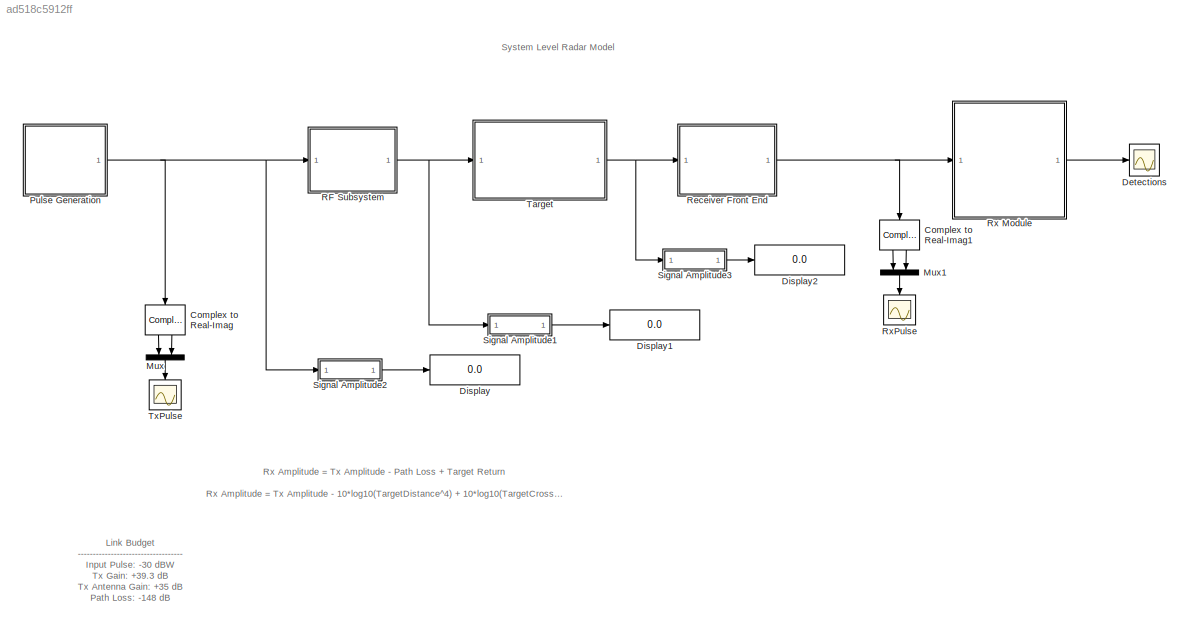
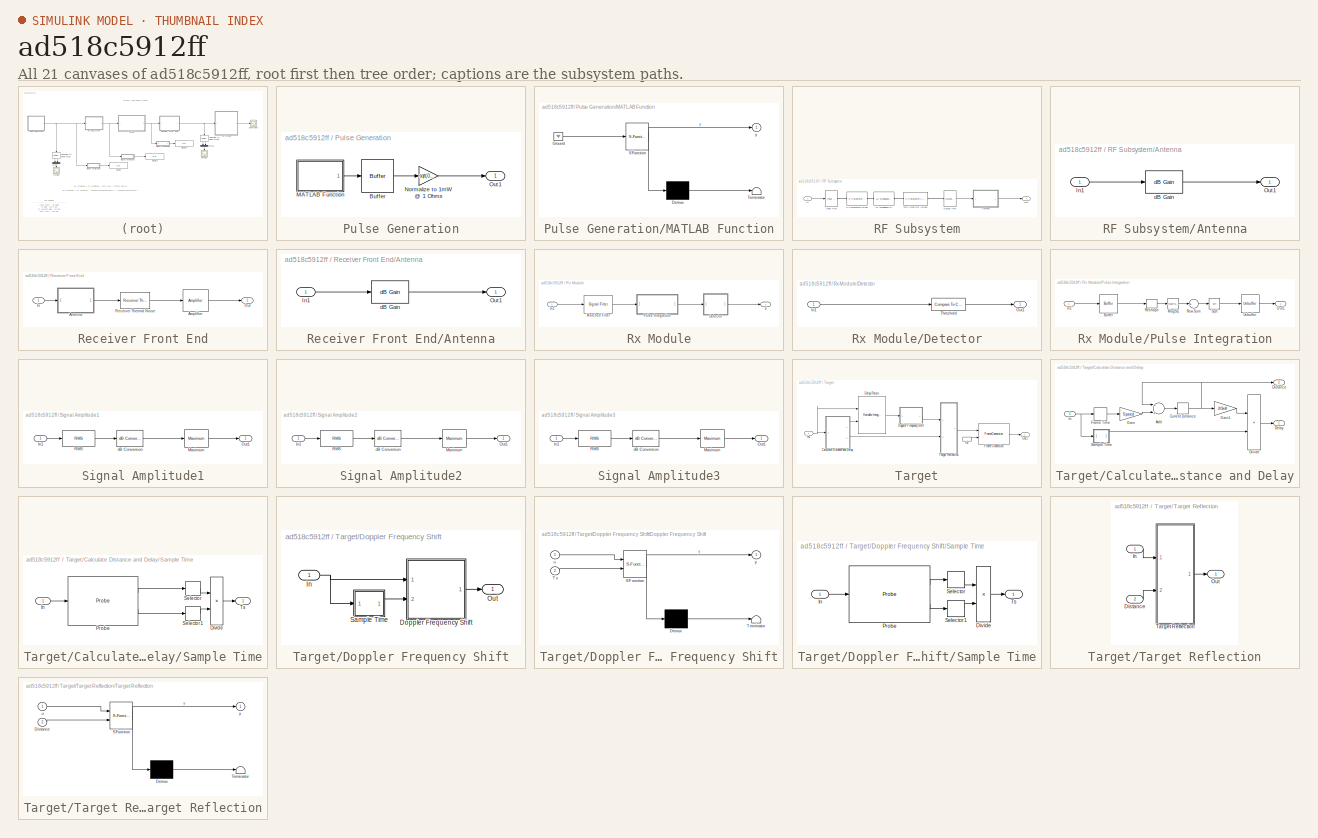
[diagram: thumbnail index - all 21 canvases of the model, root first then tree order]
MODEL slx_ad518c5912ff
KIND model
WORKSPACE source: MAT-file member
WORKSPACE Ts = 1.6667e-07
BLOCK [ComplexToRealImag] Complex to Real-Imag
  Ports = [1, 2]
BLOCK [ComplexToRealImag] Complex to Real-Imag1
  Ports = [1, 2]
BLOCK [Scope] Detections
  DataFormat = StructureWithTime
  Floating = off
  LimitDataPoints = off
  NumInputPorts = 1
  Ports = [1]
  SampleTime = 0
  SaveName = ScopeData1
  ShowLegends = off
  TimeRange = 0.0004
  YMax = 1
  YMin = 0
  ZoomMode = xonly
BLOCK [Display] Display
  Decimation = 1
  Lockdown = off
  Ports = [1]
BLOCK [Display] Display1
  Decimation = 1
  Lockdown = off
  Ports = [1]
BLOCK [Display] Display2
  Decimation = 1
  Lockdown = off
  Ports = [1]
BLOCK [Mux] Mux
  DisplayOption = bar
  Inputs = 2
  Ports = [2, 1]
BLOCK [Mux] Mux1
  DisplayOption = bar
  Inputs = 2
  Ports = [2, 1]
BLOCK [SubSystem] Pulse Generation
  FunctionWithSeparateData = off
  MaskHideContents = off
  MinAlgLoopOccurrences = off
  Opaque = off
  Ports = [0, 1]
  PropExecContextOutsideSubsystem = off
  RTWSystemCode = Auto
  RequestExecContextInheritance = off
BLOCK [Buffer] Pulse Generation/Buffer
  N = 1
  TreatMby1Signals = One channel
BLOCK [SubSystem] Pulse Generation/MATLAB Function
  ErrorFcn = Stateflow.Translate.translate
  FunctionWithSeparateData = off
  MaskHideContents = off
  MinAlgLoopOccurrences = off
  Opaque = off
  PermitHierarchicalResolution = ExplicitOnly
  Ports = [0, 1]
  PropExecContextOutsideSubsystem = off
  RTWSystemCode = Auto
  RequestExecContextInheritance = off
  SFBlockType = MATLAB Function
  TreatAsAtomicUnit = on
BLOCK [Demux] Pulse Generation/MATLAB Function/ Demux 
  Outputs = 1
  Ports = [1, 1]
BLOCK [Ground] Pulse Generation/MATLAB Function/ Ground 
BLOCK [S-Function] Pulse Generation/MATLAB Function/ SFunction 
  EnableBusSupport = off
  FunctionName = sf_sfun
  PortCounts = [1 2]
  Ports = [1, 2]
  Tag = Stateflow S-Function RadarSystemLevel_2 2
BLOCK [Terminator] Pulse Generation/MATLAB Function/ Terminator 
BLOCK [Outport] Pulse Generation/MATLAB Function/y
  IconDisplay = Port number
BLOCK [Gain] Pulse Generation/Normalize to 1mW @ 1 Ohms 
  Gain = sqrt(.001)
  OutDataTypeStr = Inherit: Inherit via internal rule
  ParamDataTypeStr = Inherit: Inherit via internal rule
  SaturateOnIntegerOverflow = off
BLOCK [Outport] Pulse Generation/Out1
  IconDisplay = Port number
BLOCK [SubSystem] RF Subsystem
  FunctionWithSeparateData = off
  MaskHideContents = off
  MinAlgLoopOccurrences = off
  Opaque = off
  Ports = [1, 1]
  PropExecContextOutsideSubsystem = off
  RTWSystemCode = Auto
  RequestExecContextInheritance = off
BLOCK [SubSystem] RF Subsystem/Antenna
  FunctionWithSeparateData = off
  MaskHideContents = off
  MinAlgLoopOccurrences = off
  Opaque = off
  Ports = [1, 1]
  PropExecContextOutsideSubsystem = off
  RTWSystemCode = Auto
  RequestExecContextInheritance = off
BLOCK [Inport] RF Subsystem/Antenna/In1
  IconDisplay = Port number
BLOCK [Outport] RF Subsystem/Antenna/Out1
  IconDisplay = Port number
BLOCK [Reference] RF Subsystem/Antenna/dB Gain  REF=dspmathops/dB Gain
  Ports = [1, 1]
  SourceBlock = dspmathops/dB Gain
  SourceType = dB Gain
  dB = 35
  intype = Amplitude
BLOCK [Inport] RF Subsystem/In
  IconDisplay = Port number
BLOCK [Reference] RF Subsystem/Input Port  REF=rfports1/Input Port
  Description = source block
  Fc = carrierFreq
  FracBW = 0
  GoToTag = BBDGFEHJWJPKQFZCCFMWFQE
  MaxLength = 128
  ModelDelay = 0
  NoiseFlag = off
  Ports = [1, 0, 0, 0, 0, 0, 1]
  RFhasDSP = Columns as channels (frame based)
  SourceBlock = rfports1/Input Port
  SourceType = Input Port
  TreatSimulinkInputSignalAs = Incident power wave
  Ts = Ts
  Zs = 50
  seed = 67987
BLOCK [Reference] RF Subsystem/LC Bandpass Pi  REF=rfladderfilters1/LC Bandpass Pi
  AllPlotType = X-Y plane
  AppliedComplexFormat = Magnitude (decibels)
  AppliedNetworkData = S21
  AppliedXFormat = Hz
  AppliedXParameter = Freq
  C = [3.5785e-11  1.1762e-12  3.5785e-11]*.32
  ComplexFormat = Magnitude (decibels)
  DBFormat = Magnitude (decibels)
  DisplayData = off
  Freq = [1000e6:4e6:3000e6]
  L = [1.4446e-9  4.3949e-8  1.4446e-9]*.32
  LConnTagsString = __newl0
  NetworkData = S21
  NoneFormat = None
  PlotFreq = User-specified
  PlotFreqNoSim = User-specified
  PlotZ0 = 50
  PolarData = S11
  Ports = [0, 0, 0, 0, 0, 1, 1]
  RConnTagsString = __newr0
  SmithData = S11
  SourceBlock = rfladderfilters1/LC Bandpass Pi
  SourceFreq = User-specified
  SourceType = LC Bandpass Pi
  XOption = Linear
  YOption = Linear
BLOCK [Outport] RF Subsystem/Out
  IconDisplay = Port number
BLOCK [Reference] RF Subsystem/Output Port  REF=rfports1/Output Port
  AllPlotType = X-Y plane
  AppliedComplexFormat = Magnitude (decibels)
  AppliedComplexFormat2 = Magnitude (decibels)
  AppliedNetworkData = S21
  AppliedNetworkData2 = NF
  AppliedXFormat = Hz
  AppliedXParameter = Freq
  ComplexFormat = Magnitude (decibels)
  DBFormat = Magnitude (decibels)
  DBMFormat = dBm
  DisplayData = off
  Flag = 0
  Freq = 1e9:1e8:3e9
  GoToTag = BBDGFEHJWJPKQFZCCFMWFQE
  NetworkData = S11
  NoBudgetPlot = Composite data
  NoneFormat = None
  PlotFreq = User-specified
  PlotZ0 = 50
  PolarData = S11
  Ports = [0, 1, 0, 0, 0, 1]
  SmithData = S11
  SourceBlock = rfports1/Output Port
  SourceFreq = Derived from Input Port parameters
  SourceType = Output Port
  XOption = Linear
  YOption = Linear
  Zl = 50
  num_Models = 0
BLOCK [Reference] RF Subsystem/S-Parameters Mixer  REF=rfmixers1/S-Parameters
Mixer
  AllPlotType = X-Y plane
  AppliedComplexFormat = Magnitude (decibels)
  AppliedNetworkData = S11
  AppliedXFormat = Auto
  AppliedXParameter = Freq
  ComplexFormat = 0
  DBFormat = 0
  DBcFormat = 0
  DisplayData = 0
  FLO = 0
  FMIN = 0
  Freq = [1e9:1e8:2.9e9]
  FreqOffset = [0.1 1 10 100]*1e3
  GCSat = 0
  GammaOpt = 1
  IIP3 = inf
  IP3Type = OIP3
  InterpMethod = Linear
  LConnTagsString = __newl0
  MixerType = Upconverter
  NF = 0
  NFactor = 1
  NTemp = 0
  NetParamData = [0 0;1 0]
  NetParamFreq = carrierFreq
  NetworkData = 0
  NoiseDataFreq = 2.0e9
  NoiseDefinedBy = Noise figure
  NoneFormat = 0
  NonlinearDataFreq = 2.0e9
  OIP3 = inf
  P1dB = inf
  PSat = inf
  PhaseNoiseLevel = [-70 -120 -140 -150]
  Pin = 0
  PlotFreq = Same as the Frequency parameter
  PlotFreqNoSim = 0
  PlotZ0 = 50
  PolarData = 0
  Ports = [0, 0, 0, 0, 0, 1, 1]
  RConnTagsString = __newr0
  RN = 1
  SmithData = 0
  SourceBlock = rfmixers1/S-Parameters\nMixer
  SourceFreq = Same as the s-parameters frequency
  SourcePin = Extracted from data source
  SourceType = S-Parameters Mixer
  XOption = Linear
  YOption = Linear
  Z0 = 50
BLOCK [Reference] RF Subsystem/TWT Amplifier (40 dB)  REF=rfamplifiers1/S-Parameters
Amplifier
  AllPlotType = X-Y plane
  AppliedComplexFormat = Magnitude (decibels)
  AppliedNetworkData = S11
  AppliedXFormat = Auto
  AppliedXParameter = Freq
  ComplexFormat = 0
  DBFormat = 0
  DisplayData = 0
  FMIN = 0
  Freq = [1.9e9:1.0e8:2.2e9]
  GCSat = 0
  GammaOpt = 1
  IIP3 = 50
  IP3Type = OIP3
  InterpMethod = Linear
  LConnTagsString = __newl0
  NF = 8
  NFactor = 1
  NTemp = 0
  NetParamData = [0,0;sqrt(10000),0]
  NetParamFreq = carrierFreq
  NetworkData = 0
  NoiseDataFreq = 2.0e9
  NoiseDefinedBy = Noise figure
  NoneFormat = 0
  NonlinearDataFreq = 2.0e9
  OIP3 = 50
  P1dB = inf
  PSat = inf
  Pin = 0
  PlotFreq = Derived from Input Port parameters
  PlotFreqNoSim = 0
  PlotZ0 = 50
  PolarData = 0
  Ports = [0, 0, 0, 0, 0, 1, 1]
  RConnTagsString = __newr0
  RN = 1
  SmithData = 0
  SourceBlock = rfamplifiers1/S-Parameters\nAmplifier
  SourceFreq = Same as the s-parameters frequency
  SourcePin = Extracted from data source
  SourceType = S-Parameters Amplifier
  XOption = Linear
  YOption = Linear
  Z0 = 50
BLOCK [SubSystem] Receiver Front End
  FunctionWithSeparateData = off
  MaskHideContents = off
  MinAlgLoopOccurrences = off
  Opaque = off
  Ports = [1, 1]
  PropExecContextOutsideSubsystem = off
  RTWSystemCode = Auto
  RequestExecContextInheritance = off
BLOCK [Reference] Receiver Front End/Amplifier  REF=rfmathmodels1/Amplifier
  GindB = 0
  GoutdB = 0
  Ports = [1, 1]
  PwrAMPMEnd = inf
  PwrAMPMStart = 10
  SourceBlock = rfmathmodels1/Amplifier
  SourceType = Amplifier
  am2pm = 10
  amam = [2.1587 1.1517]
  ampm = [4.0033 9.1040]
  iip3 = 30
  linGaindB = 30
  method_select = Noise figure
  model_select = Linear
  nfactor = 6.3
  nfigure = 6.3
  ntemp = 290
  p = 0.5
  seed = 67987
  vsat = 1
  x = [8.1081 1.5413 6.5202 -0.0718]
  y = [4.6645 2.0965 10.88 -0.003]
BLOCK [SubSystem] Receiver Front End/Antenna
  FunctionWithSeparateData = off
  MaskHideContents = off
  MinAlgLoopOccurrences = off
  Opaque = off
  Ports = [1, 1]
  PropExecContextOutsideSubsystem = off
  RTWSystemCode = Auto
  RequestExecContextInheritance = off
BLOCK [Inport] Receiver Front End/Antenna/In1
  IconDisplay = Port number
BLOCK [Outport] Receiver Front End/Antenna/Out1
  IconDisplay = Port number
BLOCK [Reference] Receiver Front End/Antenna/dB Gain  REF=dspmathops/dB Gain
  Ports = [1, 1]
  SourceBlock = dspmathops/dB Gain
  SourceType = dB Gain
  dB = 35
  intype = Amplitude
BLOCK [Inport] Receiver Front End/In
  IconDisplay = Port number
BLOCK [Outport] Receiver Front End/Out
  IconDisplay = Port number
BLOCK [Reference] Receiver Front End/Receiver Thermal Noise  REF=commrflib2/Receiver
Thermal Noise
  Ports = [1, 1]
  SourceBlock = commrflib2/Receiver\nThermal Noise
  SourceType = Receiver Thermal Noise
  method = Noise temperature
  nfactor = 2
  nfigure = 3.01
  ntemp = 290
  seed = 67987
BLOCK [SubSystem] Rx Module
  FunctionWithSeparateData = off
  MaskHideContents = off
  MinAlgLoopOccurrences = off
  Opaque = off
  Ports = [1, 1]
  PropExecContextOutsideSubsystem = off
  RTWSystemCode = Auto
  RequestExecContextInheritance = off
BLOCK [SubSystem] Rx Module/Detector
  FunctionWithSeparateData = off
  MaskHideContents = off
  MinAlgLoopOccurrences = off
  Opaque = off
  Ports = [1, 1]
  PropExecContextOutsideSubsystem = off
  RTWSystemCode = Auto
  RequestExecContextInheritance = off
BLOCK [Inport] Rx Module/Detector/In1
  IconDisplay = Port number
BLOCK [Outport] Rx Module/Detector/Out1
  IconDisplay = Port number
BLOCK [Reference] Rx Module/Detector/Threshold  REF=simulink/Logic and Bit
Operations/Compare
To Constant
  OutDataTypeStr = boolean
  Ports = [1, 1]
  SourceBlock = simulink/Logic and Bit\nOperations/Compare\nTo Constant
  SourceType = Compare To Constant
  ZeroCross = on
  const = 4e-4
  relop = >
BLOCK [Inport] Rx Module/In1
  IconDisplay = Port number
BLOCK [Reference] Rx Module/Matched Filter  REF=dsparch4/Digital Filter
  AllPoleFiltStruct = Direct form
  BiQuadCoeffs = [1 0.3 0.4 1 0.1 0.2]
  CoeffSource = Specify via dialog
  DenCoeffs = [1 0.1]
  FIRFiltStruct = Direct form
  FiltPerSampPopup = One filter per frame
  FilterSource = Specify via dialog
  IC = 0
  ICden = 0
  ICnum = 0
  IIRFiltStruct = Direct form II transposed
  InputProcessing = Columns as channels (frame based)
  LatticeCoeffs = [0.2 0.4]
  LockScale = off
  NumCoeffs = mf_lfm
  Ports = [1, 1]
  ScaleValues = 1
  SourceBlock = dsparch4/Digital Filter
  SourceType = Digital Filter
  TypePopup = FIR (all zeros)
  UserDataPersistent = on
  accumFracLength = 30
  accumMode = Same as product output
  accumWordLength = 32
  additionalParams = off
  allowOverrides = on
  denIgnore = on
  dfiltObjectName = dfilt.dffir([1 2 1])
  firstCoeffFracLength = 15
  firstCoeffMode = Same word length as input
  firstCoeffWordLength = 16
  memoryFracLength = 15
  memoryMode = Same as accumulator
  memoryWordLength = 16
  multiplicandFracLength = 30
  multiplicandMode = Same as output
  multiplicandWordLength = 32
  outputFracLength = 15
  outputMode = Same as accumulator
  outputWordLength = 16
  overflowMode = off
  prodOutputFracLength = 30
  prodOutputMode = Same as input
  prodOutputWordLength = 32
  roundingMode = Floor
  scaleValueFracLength = 14
  secondCoeffFracLength = 15
  secondCoeffMode = Same as numerator
  secondCoeffWordLength = 16
  showAcc = off
  showCoeff = off
  showMem = off
  showMpy = off
  showOut = off
  stageIOMode = Same as input
  stageIOWordLength = 16
  stageInFracLength = 15
  stageOutFracLength = 15
  tapSumFracLength = 30
  tapSumMode = Same as input
  tapSumWordLength = 32
  thirdCoeffFracLength = 15
  thirdCoeffMode = Same as input
  thirdCoeffWordLength = 16
BLOCK [SubSystem] Rx Module/Pulse Integration
  FunctionWithSeparateData = off
  MaskHideContents = off
  MinAlgLoopOccurrences = off
  Opaque = off
  Ports = [1, 1]
  PropExecContextOutsideSubsystem = off
  RTWSystemCode = Auto
  RequestExecContextInheritance = off
BLOCK [Buffer] Rx Module/Pulse Integration/Buffer
  N = pulseLen*N
  TreatMby1Signals = One channel
  V = pulseLen*(N-1)
BLOCK [Inport] Rx Module/Pulse Integration/In1
  IconDisplay = Port number
BLOCK [Math] Rx Module/Pulse Integration/MagSq
  Operator = magnitude^2
  Ports = [1, 1]
BLOCK [Outport] Rx Module/Pulse Integration/Out1
  IconDisplay = Port number
BLOCK [Reshape] Rx Module/Pulse Integration/Reshape
  OutputDimensionality = Customize
  OutputDimensions = [pulseLen,N]
  Ports = [1, 1]
BLOCK [Sum] Rx Module/Pulse Integration/Row Sum
  CollapseDim = 2
  CollapseMode = Specified dimension
  InputSameDT = off
  Inputs = +
  OutDataTypeStr = Inherit: Inherit via internal rule
  Ports = [1, 1]
  SaturateOnIntegerOverflow = off
BLOCK [Sqrt] Rx Module/Pulse Integration/Sqrt
BLOCK [Unbuffer] Rx Module/Pulse Integration/Unbuffer
  Ports = [1, 1]
  SampleBasedProcessing = Same as frame based
BLOCK [Outport] Rx Module/d
  IconDisplay = Port number
BLOCK [Scope] RxPulse
  DataFormat = StructureWithTime
  Floating = off
  LimitDataPoints = off
  NumInputPorts = 1
  Ports = [1]
  SampleTime = 0
  SaveName = ScopeData2
  ShowLegends = off
  TimeRange = 0.0004
  YMax = 5e-05
  YMin = -4e-05
  ZoomMode = xonly
BLOCK [SubSystem] Signal Amplitude1
  FunctionWithSeparateData = off
  MaskHideContents = off
  MinAlgLoopOccurrences = off
  Opaque = off
  Ports = [1, 1]
  PropExecContextOutsideSubsystem = off
  RTWSystemCode = Auto
  RequestExecContextInheritance = off
BLOCK [Inport] Signal Amplitude1/In1
  IconDisplay = Port number
BLOCK [Reference] Signal Amplitude1/Maximum  REF=dspstat3/Maximum
  Dimension = 1
  InputProcessing = Elements as channels (sample based)
  LockScale = off
  Ports = [1, 1]
  SourceBlock = dspstat3/Maximum
  SourceType = Maximum
  UserDataPersistent = on
  accumDataTypeStr = Inherit: Same as product output
  accumFracLength = 30
  accumLastDataTypeStr = Inherit: Same as product output
  accumMode = Same as product output
  accumWordLength = 32
  additionalParams = off
  allowOverrides = on
  colComp = on
  fcn = Running
  indexBase = One
  operateOver = Each column
  operation = maximum
  overflowMode = off
  prodOutputDataTypeStr = Inherit: Same as input
  prodOutputFracLength = 30
  prodOutputLastDataTypeStr = Inherit: Same as input
  prodOutputMode = Same as input
  prodOutputWordLength = 32
  reset = None
  roiEnable = off
  roiFlag = off
  roiOutput = Individual statistics for each ROI
  roiPortion = Entire ROI
  roiType = Rectangles
  roundingMode = Floor
BLOCK [Outport] Signal Amplitude1/Out1
  IconDisplay = Port number
BLOCK [Reference] Signal Amplitude1/RMS  REF=dspstat3/RMS
  InputProcessing = Columns as channels (frame based)
  Ports = [1, 1]
  SourceBlock = dspstat3/RMS
  SourceType = RMS
  UserDataPersistent = on
  dimension = 1
  directionMode = Each column
  reset_popup = None
  run = off
  treatSBRowAsCol = on
BLOCK [Reference] Signal Amplitude1/dB Conversion  REF=dspmathops/dB Conversion
  Ports = [1, 1]
  R = 1
  SourceBlock = dspmathops/dB Conversion
  SourceType = dB Conversion
  dBtype = dB
  fuzz = off
  intype = Amplitude
BLOCK [SubSystem] Signal Amplitude2
  FunctionWithSeparateData = off
  MaskHideContents = off
  MinAlgLoopOccurrences = off
  Opaque = off
  Ports = [1, 1]
  PropExecContextOutsideSubsystem = off
  RTWSystemCode = Auto
  RequestExecContextInheritance = off
BLOCK [Inport] Signal Amplitude2/In1
  IconDisplay = Port number
BLOCK [Reference] Signal Amplitude2/Maximum  REF=dspstat3/Maximum
  Dimension = 1
  InputProcessing = Elements as channels (sample based)
  LockScale = off
  Ports = [1, 1]
  SourceBlock = dspstat3/Maximum
  SourceType = Maximum
  UserDataPersistent = on
  accumDataTypeStr = Inherit: Same as product output
  accumFracLength = 30
  accumLastDataTypeStr = Inherit: Same as product output
  accumMode = Same as product output
  accumWordLength = 32
  additionalParams = off
  allowOverrides = on
  colComp = on
  fcn = Running
  indexBase = One
  operateOver = Each column
  operation = maximum
  overflowMode = off
  prodOutputDataTypeStr = Inherit: Same as input
  prodOutputFracLength = 30
  prodOutputLastDataTypeStr = Inherit: Same as input
  prodOutputMode = Same as input
  prodOutputWordLength = 32
  reset = None
  roiEnable = off
  roiFlag = off
  roiOutput = Individual statistics for each ROI
  roiPortion = Entire ROI
  roiType = Rectangles
  roundingMode = Floor
BLOCK [Outport] Signal Amplitude2/Out1
  IconDisplay = Port number
BLOCK [Reference] Signal Amplitude2/RMS  REF=dspstat3/RMS
  InputProcessing = Columns as channels (frame based)
  Ports = [1, 1]
  SourceBlock = dspstat3/RMS
  SourceType = RMS
  UserDataPersistent = on
  dimension = 1
  directionMode = Each column
  reset_popup = None
  run = off
  treatSBRowAsCol = on
BLOCK [Reference] Signal Amplitude2/dB Conversion  REF=dspmathops/dB Conversion
  Ports = [1, 1]
  R = 1
  SourceBlock = dspmathops/dB Conversion
  SourceType = dB Conversion
  dBtype = dB
  fuzz = off
  intype = Amplitude
BLOCK [SubSystem] Signal Amplitude3
  FunctionWithSeparateData = off
  MaskHideContents = off
  MinAlgLoopOccurrences = off
  Opaque = off
  Ports = [1, 1]
  PropExecContextOutsideSubsystem = off
  RTWSystemCode = Auto
  RequestExecContextInheritance = off
BLOCK [Inport] Signal Amplitude3/In1
  IconDisplay = Port number
BLOCK [Reference] Signal Amplitude3/Maximum  REF=dspstat3/Maximum
  Dimension = 1
  InputProcessing = Elements as channels (sample based)
  LockScale = off
  Ports = [1, 1]
  SourceBlock = dspstat3/Maximum
  SourceType = Maximum
  UserDataPersistent = on
  accumDataTypeStr = Inherit: Same as product output
  accumFracLength = 30
  accumLastDataTypeStr = Inherit: Same as product output
  accumMode = Same as product output
  accumWordLength = 32
  additionalParams = off
  allowOverrides = on
  colComp = on
  fcn = Running
  indexBase = One
  operateOver = Each column
  operation = maximum
  overflowMode = off
  prodOutputDataTypeStr = Inherit: Same as input
  prodOutputFracLength = 30
  prodOutputLastDataTypeStr = Inherit: Same as input
  prodOutputMode = Same as input
  prodOutputWordLength = 32
  reset = None
  roiEnable = off
  roiFlag = off
  roiOutput = Individual statistics for each ROI
  roiPortion = Entire ROI
  roiType = Rectangles
  roundingMode = Floor
BLOCK [Outport] Signal Amplitude3/Out1
  IconDisplay = Port number
BLOCK [Reference] Signal Amplitude3/RMS  REF=dspstat3/RMS
  InputProcessing = Columns as channels (frame based)
  Ports = [1, 1]
  SourceBlock = dspstat3/RMS
  SourceType = RMS
  UserDataPersistent = on
  dimension = 1
  directionMode = Each column
  reset_popup = None
  run = off
  treatSBRowAsCol = on
BLOCK [Reference] Signal Amplitude3/dB Conversion  REF=dspmathops/dB Conversion
  Ports = [1, 1]
  R = 1
  SourceBlock = dspmathops/dB Conversion
  SourceType = dB Conversion
  dBtype = dB
  fuzz = off
  intype = Amplitude
BLOCK [SubSystem] Target
  FunctionWithSeparateData = off
  MaskHideContents = off
  MinAlgLoopOccurrences = off
  Opaque = off
  Ports = [1, 1]
  PropExecContextOutsideSubsystem = off
  RTWSystemCode = Auto
  RequestExecContextInheritance = off
BLOCK [SubSystem] Target/Calculate Distance and Delay
  FunctionWithSeparateData = off
  MaskHideContents = off
  MinAlgLoopOccurrences = off
  Opaque = off
  Ports = [1, 2]
  PropExecContextOutsideSubsystem = off
  RTWSystemCode = Auto
  RequestExecContextInheritance = off
BLOCK [Sum] Target/Calculate Distance and Delay/Add
  InputSameDT = off
  OutDataTypeStr = Inherit: Inherit via internal rule
  Ports = [2, 1]
  SaturateOnIntegerOverflow = off
BLOCK [Memory] Target/Calculate Distance and Delay/Current Distance
  InheritSampleTime = on
  X0 = DistanceStart
BLOCK [Outport] Target/Calculate Distance and Delay/Delay
  IconDisplay = Port number
BLOCK [Outport] Target/Calculate Distance and Delay/Distance
  IconDisplay = Port number
  Port = 2
BLOCK [Product] Target/Calculate Distance and Delay/Divide
  InputSameDT = off
  Inputs = */
  OutDataTypeStr = Inherit: Inherit via internal rule
  Ports = [2, 1]
  RndMeth = Floor
  SaturateOnIntegerOverflow = off
BLOCK [SampleTimeMath] Target/Calculate Distance and Delay/Frame Time
  TsampMathOp = Ts Only
BLOCK [Gain] Target/Calculate Distance and Delay/Gain
  Gain = Speed
BLOCK [Gain] Target/Calculate Distance and Delay/Gain1
  Gain = 2/3e8
  OutDataTypeStr = Inherit: Inherit via internal rule
  ParamDataTypeStr = Inherit: Inherit via internal rule
  SaturateOnIntegerOverflow = off
BLOCK [Inport] Target/Calculate Distance and Delay/In
  IconDisplay = Port number
BLOCK [SubSystem] Target/Calculate Distance and Delay/Sample Time
  FunctionWithSeparateData = off
  MaskHideContents = off
  MinAlgLoopOccurrences = off
  Opaque = off
  Ports = [1, 1]
  PropExecContextOutsideSubsystem = off
  RTWSystemCode = Auto
  RequestExecContextInheritance = off
BLOCK [Product] Target/Calculate Distance and Delay/Sample Time/Divide
  InputSameDT = off
  Inputs = */
  OutDataTypeStr = Inherit: Inherit via internal rule
  Ports = [2, 1]
  RndMeth = Floor
  SaturateOnIntegerOverflow = off
BLOCK [Inport] Target/Calculate Distance and Delay/Sample Time/In
  IconDisplay = Port number
BLOCK [Probe] Target/Calculate Distance and Delay/Sample Time/Probe
  Ports = [1, 2]
  ProbeComplexSignal = off
  ProbeSignalDimensions = on
  ProbeWidth = off
BLOCK [Selector] Target/Calculate Distance and Delay/Sample Time/Selector
  IndexOptions = Index vector (dialog)
  Indices = 1
  InputPortWidth = 2
  OutputSizes = 1
  Ports = [1, 1]
BLOCK [Selector] Target/Calculate Distance and Delay/Sample Time/Selector1
  IndexOptions = Index vector (dialog)
  Indices = 1
  InputPortWidth = 2
  OutputSizes = 1
  Ports = [1, 1]
BLOCK [Outport] Target/Calculate Distance and Delay/Sample Time/Ts
  IconDisplay = Port number
BLOCK [Reference] Target/Delay Return  REF=dspsigops/Variable
Integer Delay
  InputProcessing = Columns as channels (frame based)
  Ports = [2, 1]
  SourceBlock = dspsigops/Variable\nInteger Delay
  SourceType = Variable Integer Delay
  UserDataPersistent = on
  dmax = 10000
  ic = 0
  noDFT = off
BLOCK [SubSystem] Target/Doppler Frequency Shift
  FunctionWithSeparateData = off
  MaskHideContents = off
  MinAlgLoopOccurrences = off
  Opaque = off
  Ports = [1, 1]
  PropExecContextOutsideSubsystem = off
  RTWSystemCode = Auto
  RequestExecContextInheritance = off
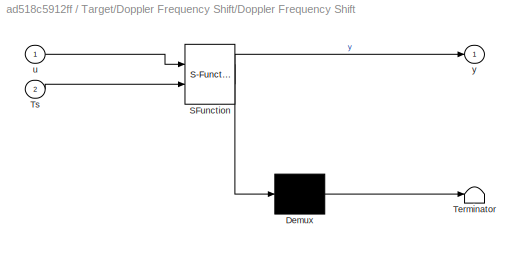
BLOCK [SubSystem] Target/Doppler Frequency Shift/Doppler Frequency Shift
  ErrorFcn = Stateflow.Translate.translate
  FunctionWithSeparateData = off
  MaskHideContents = off
  MinAlgLoopOccurrences = off
  Opaque = off
  PermitHierarchicalResolution = ExplicitOnly
  Ports = [2, 1]
  PropExecContextOutsideSubsystem = off
  RTWSystemCode = Auto
  RequestExecContextInheritance = off
  SFBlockType = MATLAB Function
  TreatAsAtomicUnit = on
BLOCK [Demux] Target/Doppler Frequency Shift/Doppler Frequency Shift/ Demux 
  Outputs = 1
  Ports = [1, 1]
BLOCK [S-Function] Target/Doppler Frequency Shift/Doppler Frequency Shift/ SFunction 
  EnableBusSupport = off
  FunctionName = sf_sfun
  Parameters = Doppler
  PortCounts = [2 2]
  Ports = [2, 2]
  Tag = Stateflow S-Function RadarSystemLevel_2 1
BLOCK [Terminator] Target/Doppler Frequency Shift/Doppler Frequency Shift/ Terminator 
BLOCK [Inport] Target/Doppler Frequency Shift/Doppler Frequency Shift/Ts
  IconDisplay = Port number
  Port = 2
BLOCK [Inport] Target/Doppler Frequency Shift/Doppler Frequency Shift/u
  IconDisplay = Port number
BLOCK [Outport] Target/Doppler Frequency Shift/Doppler Frequency Shift/y
  IconDisplay = Port number
BLOCK [Inport] Target/Doppler Frequency Shift/In
  IconDisplay = Port number
BLOCK [Outport] Target/Doppler Frequency Shift/Out
  IconDisplay = Port number
BLOCK [SubSystem] Target/Doppler Frequency Shift/Sample Time
  FunctionWithSeparateData = off
  MaskHideContents = off
  MinAlgLoopOccurrences = off
  Opaque = off
  Ports = [1, 1]
  PropExecContextOutsideSubsystem = off
  RTWSystemCode = Auto
  RequestExecContextInheritance = off
BLOCK [Product] Target/Doppler Frequency Shift/Sample Time/Divide
  InputSameDT = off
  Inputs = */
  OutDataTypeStr = Inherit: Inherit via internal rule
  Ports = [2, 1]
  RndMeth = Floor
  SaturateOnIntegerOverflow = off
BLOCK [Inport] Target/Doppler Frequency Shift/Sample Time/In
  IconDisplay = Port number
BLOCK [Probe] Target/Doppler Frequency Shift/Sample Time/Probe
  Ports = [1, 2]
  ProbeComplexSignal = off
  ProbeSignalDimensions = on
  ProbeWidth = off
BLOCK [Selector] Target/Doppler Frequency Shift/Sample Time/Selector
  IndexOptions = Index vector (dialog)
  Indices = 1
  InputPortWidth = 2
  OutputSizes = 1
  Ports = [1, 1]
BLOCK [Selector] Target/Doppler Frequency Shift/Sample Time/Selector1
  IndexOptions = Index vector (dialog)
  Indices = 1
  InputPortWidth = 2
  OutputSizes = 1
  Ports = [1, 1]
BLOCK [Outport] Target/Doppler Frequency Shift/Sample Time/Ts
  IconDisplay = Port number
BLOCK [FrameConversion] Target/Frame Conversion
  InheritSamplingMode = on
  Ports = [2, 1]
BLOCK [Inport] Target/In1
  IconDisplay = Port number
BLOCK [InportShadow] Target/In2
  IconDisplay = Port number
  LatchByDelayingOutsideSignal = off
  LatchInputForFeedbackSignals = off
BLOCK [Outport] Target/Out1
  IconDisplay = Port number
BLOCK [SubSystem] Target/Target Reflection
  FunctionWithSeparateData = off
  MaskHideContents = off
  MinAlgLoopOccurrences = off
  Opaque = off
  Ports = [2, 1]
  PropExecContextOutsideSubsystem = off
  RTWSystemCode = Auto
  RequestExecContextInheritance = off
BLOCK [Inport] Target/Target Reflection/Distance
  IconDisplay = Port number
  Port = 2
BLOCK [Inport] Target/Target Reflection/In
  IconDisplay = Port number
BLOCK [Outport] Target/Target Reflection/Out
  IconDisplay = Port number
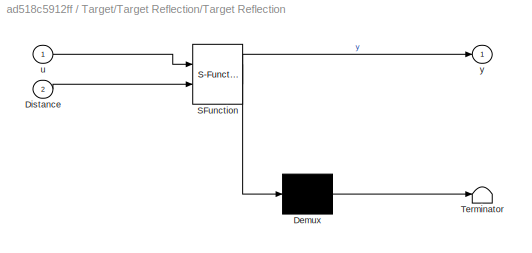
BLOCK [SubSystem] Target/Target Reflection/Target Reflection
  ErrorFcn = Stateflow.Translate.translate
  FunctionWithSeparateData = off
  MaskHideContents = off
  MinAlgLoopOccurrences = off
  Opaque = off
  PermitHierarchicalResolution = ExplicitOnly
  Ports = [2, 1]
  PropExecContextOutsideSubsystem = off
  RTWSystemCode = Auto
  RequestExecContextInheritance = off
  SFBlockType = MATLAB Function
  TreatAsAtomicUnit = on
BLOCK [Demux] Target/Target Reflection/Target Reflection/ Demux 
  Outputs = 1
  Ports = [1, 1]
BLOCK [S-Function] Target/Target Reflection/Target Reflection/ SFunction 
  EnableBusSupport = off
  FunctionName = sf_sfun
  Parameters = RCS,lambda
  PortCounts = [2 2]
  Ports = [2, 2]
  Tag = Stateflow S-Function RadarSystemLevel_2 3
BLOCK [Terminator] Target/Target Reflection/Target Reflection/ Terminator 
BLOCK [Inport] Target/Target Reflection/Target Reflection/Distance
  IconDisplay = Port number
  Port = 2
BLOCK [Inport] Target/Target Reflection/Target Reflection/u
  IconDisplay = Port number
BLOCK [Outport] Target/Target Reflection/Target Reflection/y
  IconDisplay = Port number
BLOCK [Scope] TxPulse
  DataFormat = StructureWithTime
  Floating = off
  LimitDataPoints = off
  NumInputPorts = 1
  Ports = [1]
  SampleTime = 0
  ShowLegends = off
  TimeRange = 0.0004
  YMax = 0.035
  YMin = 0
  ZoomMode = xonly
ANNOTATION (root): Link Budget ----------------------------------- Input Pulse: -30 dBW Tx Gain: +39.3 dB Tx Antenna Gain: +35 dB Path Loss: -148 dB Target Return: -49.9 dB Rx Antenna Gain : +35 dB Rx kTB: +136.2 dB Rx NF: -6.3 dB ----------------------------------- Sum: 16.3 dBW
ANNOTATION (root): Rx Amplitude = Tx Amplitude - Path Loss + Target Return Rx Amplitude = Tx Amplitude - 10*log10(TargetDistance^4) + 10*log10(TargetCrossSection*(lambda^2)/(4*pi)^3)
ANNOTATION (root): System Level Radar Model
LINE Complex to Real-Imag1:1 -> Mux1:1
LINE Complex to Real-Imag1:2 -> Mux1:2
LINE Complex to Real-Imag:1 -> Mux:1
LINE Complex to Real-Imag:2 -> Mux:2
LINE Mux1:1 -> RxPulse:1
LINE Mux:1 -> TxPulse:1
LINE Pulse Generation/Buffer:1 -> Pulse Generation/Normalize to 1mW @ 1 Ohms :1
LINE Pulse Generation/MATLAB Function:1 -> Pulse Generation/Buffer:1
LINE Pulse Generation/Normalize to 1mW @ 1 Ohms :1 -> Pulse Generation/Out1:1
NET Pulse Generation:1 -> Complex to Real-Imag:1, RF Subsystem:1, Signal Amplitude2:1
LINE RF Subsystem/Antenna/In1:1 -> RF Subsystem/Antenna/dB Gain:1
LINE RF Subsystem/Antenna/dB Gain:1 -> RF Subsystem/Antenna/Out1:1
LINE RF Subsystem/Antenna:1 -> RF Subsystem/Out:1
LINE RF Subsystem/In:1 -> RF Subsystem/Input Port:1
LINE RF Subsystem/Output Port:1 -> RF Subsystem/Antenna:1
NET RF Subsystem:1 -> Signal Amplitude1:1, Target:1
LINE Receiver Front End/Amplifier:1 -> Receiver Front End/Out:1
LINE Receiver Front End/Antenna/In1:1 -> Receiver Front End/Antenna/dB Gain:1
LINE Receiver Front End/Antenna/dB Gain:1 -> Receiver Front End/Antenna/Out1:1
LINE Receiver Front End/Antenna:1 -> Receiver Front End/Receiver Thermal Noise:1
LINE Receiver Front End/In:1 -> Receiver Front End/Antenna:1
LINE Receiver Front End/Receiver Thermal Noise:1 -> Receiver Front End/Amplifier:1
NET Receiver Front End:1 -> Complex to Real-Imag1:1, Rx Module:1
LINE Rx Module/Detector/In1:1 -> Rx Module/Detector/Threshold:1
LINE Rx Module/Detector/Threshold:1 -> Rx Module/Detector/Out1:1
LINE Rx Module/Detector:1 -> Rx Module/d:1
LINE Rx Module/In1:1 -> Rx Module/Matched Filter:1
LINE Rx Module/Matched Filter:1 -> Rx Module/Pulse Integration:1
LINE Rx Module/Pulse Integration/Buffer:1 -> Rx Module/Pulse Integration/Reshape:1
LINE Rx Module/Pulse Integration/In1:1 -> Rx Module/Pulse Integration/Buffer:1
LINE Rx Module/Pulse Integration/MagSq:1 -> Rx Module/Pulse Integration/Row Sum:1
LINE Rx Module/Pulse Integration/Reshape:1 -> Rx Module/Pulse Integration/MagSq:1
LINE Rx Module/Pulse Integration/Row Sum:1 -> Rx Module/Pulse Integration/Sqrt:1
LINE Rx Module/Pulse Integration/Sqrt:1 -> Rx Module/Pulse Integration/Unbuffer:1
LINE Rx Module/Pulse Integration/Unbuffer:1 -> Rx Module/Pulse Integration/Out1:1
LINE Rx Module/Pulse Integration:1 -> Rx Module/Detector:1
LINE Rx Module:1 -> Detections:1
LINE Signal Amplitude1/In1:1 -> Signal Amplitude1/RMS:1
LINE Signal Amplitude1/Maximum:1 -> Signal Amplitude1/Out1:1
LINE Signal Amplitude1/RMS:1 -> Signal Amplitude1/dB Conversion:1
LINE Signal Amplitude1/dB Conversion:1 -> Signal Amplitude1/Maximum:1
LINE Signal Amplitude1:1 -> Display1:1
LINE Signal Amplitude2/In1:1 -> Signal Amplitude2/RMS:1
LINE Signal Amplitude2/Maximum:1 -> Signal Amplitude2/Out1:1
LINE Signal Amplitude2/RMS:1 -> Signal Amplitude2/dB Conversion:1
LINE Signal Amplitude2/dB Conversion:1 -> Signal Amplitude2/Maximum:1
LINE Signal Amplitude2:1 -> Display:1
LINE Signal Amplitude3/In1:1 -> Signal Amplitude3/RMS:1
LINE Signal Amplitude3/Maximum:1 -> Signal Amplitude3/Out1:1
LINE Signal Amplitude3/RMS:1 -> Signal Amplitude3/dB Conversion:1
LINE Signal Amplitude3/dB Conversion:1 -> Signal Amplitude3/Maximum:1
LINE Signal Amplitude3:1 -> Display2:1
LINE Target/Calculate Distance and Delay/Add:1 -> Target/Calculate Distance and Delay/Current Distance:1
NET Target/Calculate Distance and Delay/Current Distance:1 -> Target/Calculate Distance and Delay/Add:1, Target/Calculate Distance and Delay/Distance:1, Target/Calculate Distance and Delay/Gain1:1
LINE Target/Calculate Distance and Delay/Divide:1 -> Target/Calculate Distance and Delay/Delay:1
LINE Target/Calculate Distance and Delay/Frame Time:1 -> Target/Calculate Distance and Delay/Gain:1
LINE Target/Calculate Distance and Delay/Gain1:1 -> Target/Calculate Distance and Delay/Divide:1
LINE Target/Calculate Distance and Delay/Gain:1 -> Target/Calculate Distance and Delay/Add:2
NET Target/Calculate Distance and Delay/In:1 -> Target/Calculate Distance and Delay/Frame Time:1, Target/Calculate Distance and Delay/Sample Time:1
LINE Target/Calculate Distance and Delay/Sample Time/Divide:1 -> Target/Calculate Distance and Delay/Sample Time/Ts:1
LINE Target/Calculate Distance and Delay/Sample Time/In:1 -> Target/Calculate Distance and Delay/Sample Time/Probe:1
LINE Target/Calculate Distance and Delay/Sample Time/Probe:1 -> Target/Calculate Distance and Delay/Sample Time/Selector:1
LINE Target/Calculate Distance and Delay/Sample Time/Probe:2 -> Target/Calculate Distance and Delay/Sample Time/Selector1:1
LINE Target/Calculate Distance and Delay/Sample Time/Selector1:1 -> Target/Calculate Distance and Delay/Sample Time/Divide:2
LINE Target/Calculate Distance and Delay/Sample Time/Selector:1 -> Target/Calculate Distance and Delay/Sample Time/Divide:1
LINE Target/Calculate Distance and Delay/Sample Time:1 -> Target/Calculate Distance and Delay/Divide:2
LINE Target/Calculate Distance and Delay:1 -> Target/Delay Return:2
LINE Target/Calculate Distance and Delay:2 -> Target/Target Reflection:2
LINE Target/Delay Return:1 -> Target/Doppler Frequency Shift:1
LINE Target/Doppler Frequency Shift/Doppler Frequency Shift:1 -> Target/Doppler Frequency Shift/Out:1
NET Target/Doppler Frequency Shift/In:1 -> Target/Doppler Frequency Shift/Doppler Frequency Shift:1, Target/Doppler Frequency Shift/Sample Time:1
LINE Target/Doppler Frequency Shift/Sample Time/Divide:1 -> Target/Doppler Frequency Shift/Sample Time/Ts:1
LINE Target/Doppler Frequency Shift/Sample Time/In:1 -> Target/Doppler Frequency Shift/Sample Time/Probe:1
LINE Target/Doppler Frequency Shift/Sample Time/Probe:1 -> Target/Doppler Frequency Shift/Sample Time/Selector:1
LINE Target/Doppler Frequency Shift/Sample Time/Probe:2 -> Target/Doppler Frequency Shift/Sample Time/Selector1:1
LINE Target/Doppler Frequency Shift/Sample Time/Selector1:1 -> Target/Doppler Frequency Shift/Sample Time/Divide:2
LINE Target/Doppler Frequency Shift/Sample Time/Selector:1 -> Target/Doppler Frequency Shift/Sample Time/Divide:1
LINE Target/Doppler Frequency Shift/Sample Time:1 -> Target/Doppler Frequency Shift/Doppler Frequency Shift:2
LINE Target/Doppler Frequency Shift:1 -> Target/Target Reflection:1
LINE Target/Frame Conversion:1 -> Target/Out1:1
NET Target/In1:1 -> Target/Calculate Distance and Delay:1, Target/Delay Return:1
LINE Target/In2:1 -> Target/Frame Conversion:2
LINE Target/Target Reflection/Distance:1 -> Target/Target Reflection/Target Reflection:2
LINE Target/Target Reflection/In:1 -> Target/Target Reflection/Target Reflection:1
LINE Target/Target Reflection/Target Reflection:1 -> Target/Target Reflection/Out:1
LINE Target/Target Reflection:1 -> Target/Frame Conversion:1
NET Target:1 -> Receiver Front End:1, Signal Amplitude3:1
PLINE RF Subsystem/Input Port:RConn1 -- RF Subsystem/S-Parameters Mixer:LConn1
PLINE RF Subsystem/LC Bandpass Pi:LConn1 -- RF Subsystem/S-Parameters Mixer:RConn1
PLINE RF Subsystem/LC Bandpass Pi:RConn1 -- RF Subsystem/TWT Amplifier (40 dB):LConn1
PLINE RF Subsystem/Output Port:LConn1 -- RF Subsystem/TWT Amplifier (40 dB):RConn1
note: NET lines group one-source signal fan-out (src -> all destinations, sorted); 1:1 wires keep LINE
